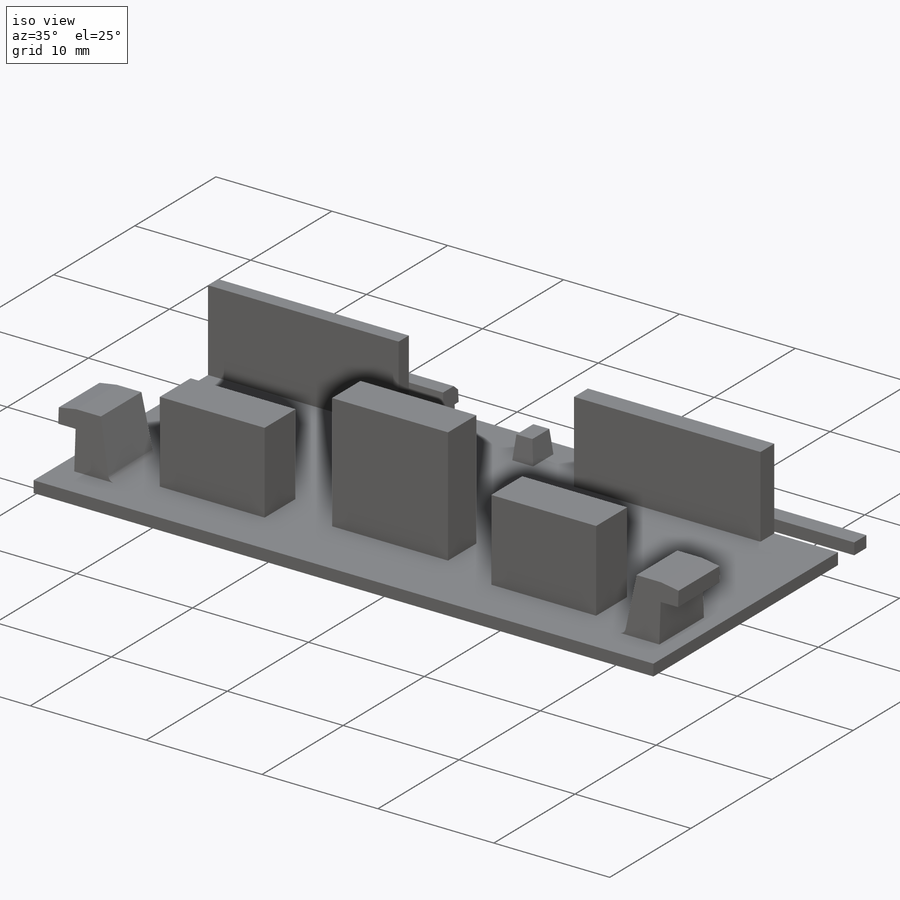
[diagram: iso view]
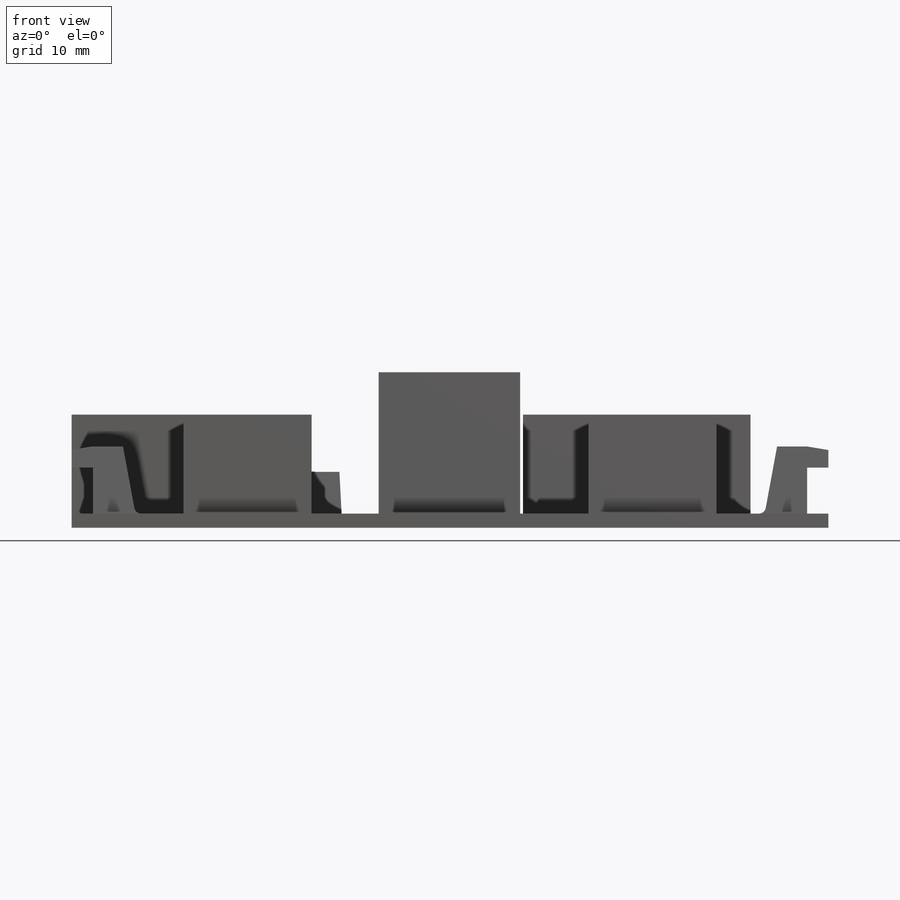
[diagram: front view]
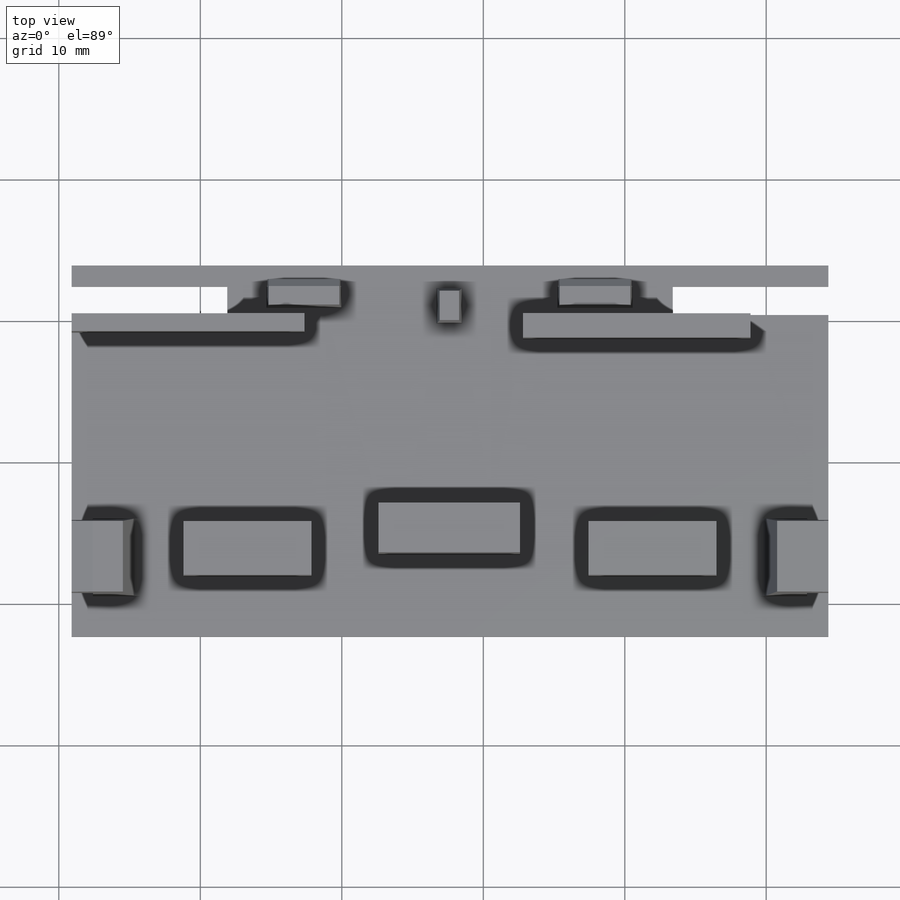
[diagram: top view]
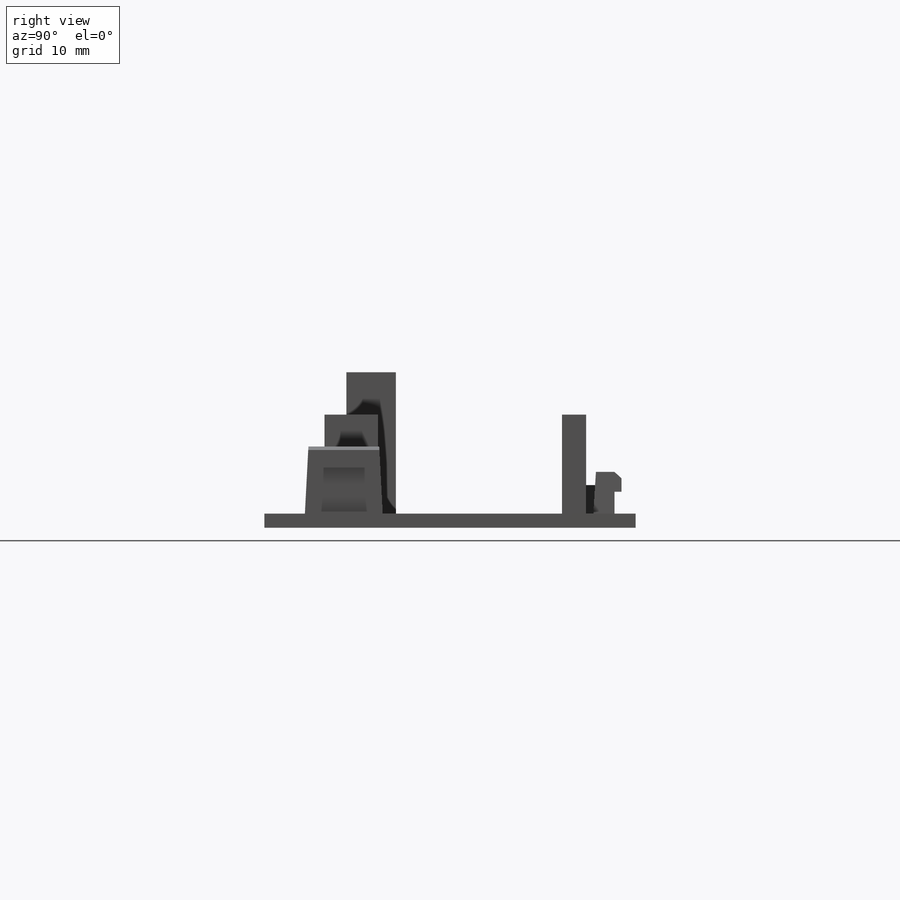
[diagram: right view]
SOLIDWORKS PART (.sldprt)
format: sldprt  version: not decoded by parser v0  size: 728,064 bytes
history: native  units: mm
features: sketch x11, extrude x5, cut_extrude x2, material x1, fillet x1 (+13 scaffold rows collapsed)
feature tree (33):
  scaffold x13  (default folders/planes/origin — collapsed)
  material  "Material <not specified>"
  sketch  "Sketch1"  dims[D1=20.0mm D2=50.0mm]
  extrude  "Main Body"  Depth=1mm
  sketch  "3DSketch3"  dims[BaseDepth=3.0mm TopDepth=2.4mm Width=5.0mm HookHeight=1.5mm Overhang=1.5mm BodyHeight=3.25mm Draft=3.0deg LipHeight=1.25mm]
  sketch  "3DSketch2"  dims[BaseDepth=3.0mm TopDepth=2.4mm Width=5.0mm HookHeight=1.5mm Overhang=1.5mm BodyHeight=3.25mm Draft=3.0deg LipHeight=1.25mm]
  sketch  "Sketch6"  dims[c1.D1=1.25mm c1.D2=1.75mm c1.D3=~11.893863mm c1.D4=~9.893863mm c1.D5=~10.017759mm c2.D2=0.5mm c2.D1=1.0mm c3.D2=0.25mm]
  cut_extrude  "Solar Arm holes"  [1 undecoded]
  sketch  "Sketch9"  dims[D1=5.8mm D2=~3.495542mm]
  extrude  "Boss-Extrude1"  Depth=10mm
  sketch  "Sketch5"
  cut_extrude  "Version"  Depth=0.25mm
  fillet  "Fillet1"  Radius=0.5mm
  sketch  "Sketch10"  dims[D1=1.0mm D2=1.0mm D3=3.0mm D4=~12.534524mm]
  extrude  "Servo Spacers Back"  [1 undecoded]
  sketch  "Sketch12"  dims[D1=0.4mm]
  extrude  "Servo 2 Spacer Bottom Back"  [1 undecoded]
  sketch  "Sketch13"  dims[D1=0.2mm]
  extrude  "Boss-Extrude2"  [1 undecoded]
  sketch  "3DSketch5"  dims[BaseDepth=1.5mm TopDepth=1.4mm Width=4.0mm HookHeight=1.4mm Overhang=1.5mm BodyHeight=1.75mm Draft=3.0deg LipHeight=0.95mm]
  sketch  "3DSketch7"  dims[BaseDepth=1.5mm TopDepth=1.4mm Width=4.0mm HookHeight=1.4mm Overhang=1.5mm BodyHeight=1.75mm Draft=3.0deg LipHeight=0.95mm]
decode coverage: 14 of 19 modeling features carry decoded parameters
note: ~ marks probable driven/reference dimensions
note: 4 parameter values undecoded
summary: no parameter record found for 4 features
note: suppression state not decoded; provenance and decode notes live in map.json
